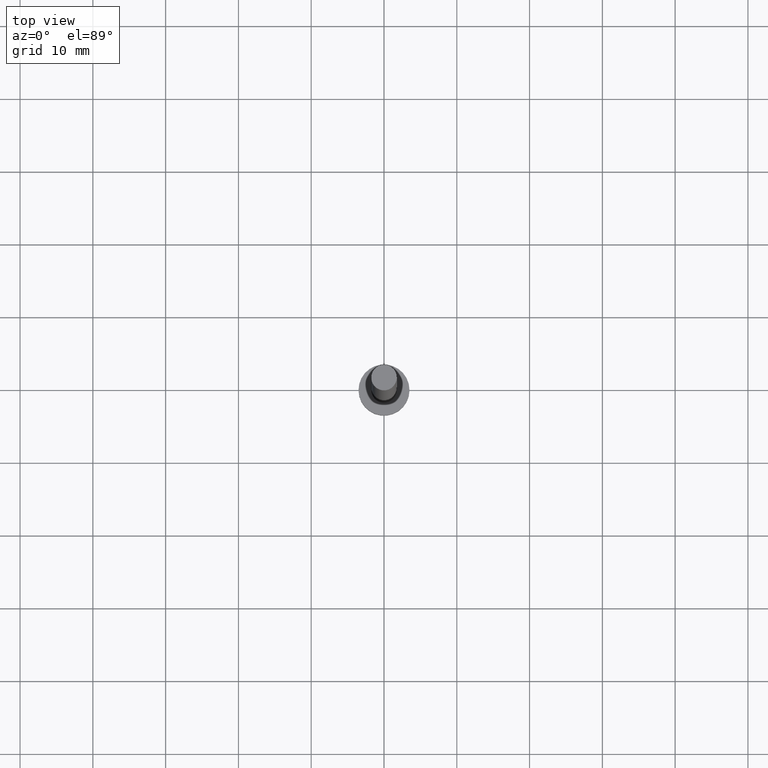
[diagram: clean part render]
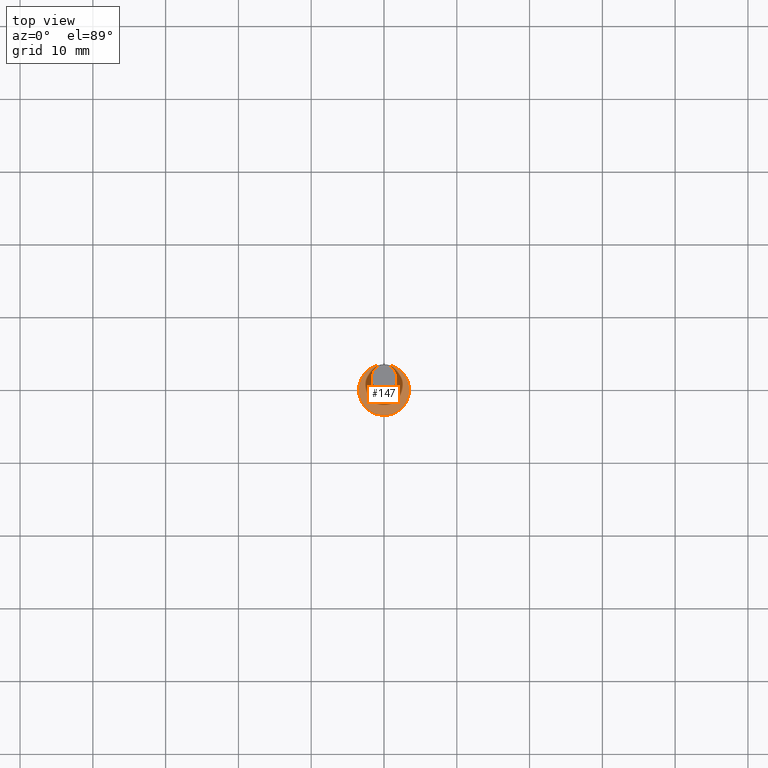
[diagram: same view with one face highlighted and labeled with its STEP entity id]
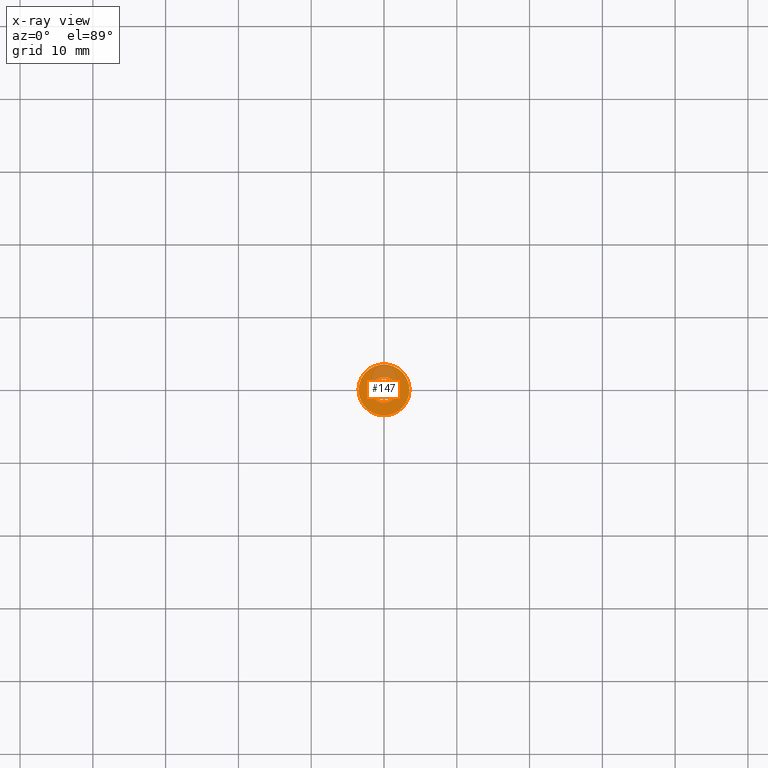
[diagram: x-ray of the same camera — body ghosted, the highlighted face saturated]
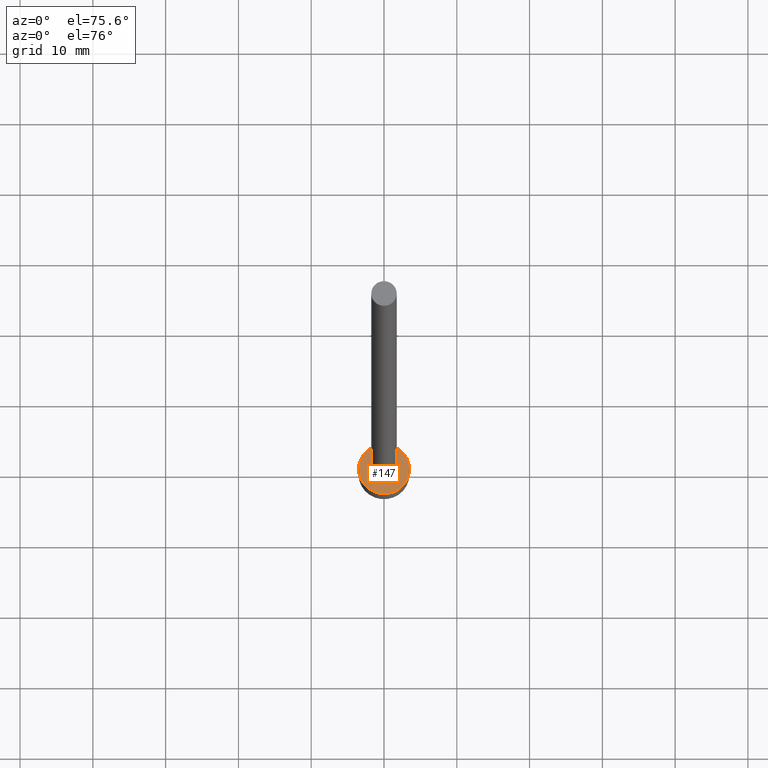
[diagram: same view with one face highlighted and labeled with its STEP entity id]
A machine part, top view. The second image highlights one B-rep face of the part: STEP entity #147.
The next image is the same camera in x-ray: the body ghosted, the highlighted face saturated — about 21% of this face is hidden behind the body in this view.
A second angle (auxiliary view) of the same face is appended — the face is thin or edge-on in the first view.
In plain terms, the highlighted planar face has unit normal (0, 0, 1).
Its self-contained STEP definition (entity closure, byte-faithful):
#17 = CARTESIAN_POINT ( 'NONE',  ( 0.000000000000000000, 0.000000000000000000, 3.000000000000000000 ) ) ;
#28 = AXIS2_PLACEMENT_3D ( 'NONE', #17, #150, #75 ) ;
#29 = DIRECTION ( 'NONE',  ( 1.000000000000000000, 0.000000000000000000, 0.000000000000000000 ) ) ;
#41 = CIRCLE ( 'NONE', #28, 1.750000000000000000 ) ;
#54 = CARTESIAN_POINT ( 'NONE',  ( 0.000000000000000000, 0.000000000000000000, 3.000000000000000000 ) ) ;
#56 = CARTESIAN_POINT ( 'NONE',  ( -1.750000000000000000, 0.000000000000000000, 3.000000000000000000 ) ) ;
#57 = CARTESIAN_POINT ( 'NONE',  ( 0.000000000000000000, 0.000000000000000000, 3.000000000000000000 ) ) ;
#64 = AXIS2_PLACEMENT_3D ( 'NONE', #54, #193, #116 ) ;
#66 = ORIENTED_EDGE ( 'NONE', *, *, #179, .T. ) ;
#72 = EDGE_LOOP ( 'NONE', ( #141, #250 ) ) ;
#75 = DIRECTION ( 'NONE',  ( 1.000000000000000000, 0.000000000000000000, 0.000000000000000000 ) ) ;
#79 = DIRECTION ( 'NONE',  ( 0.000000000000000000, 0.000000000000000000, 1.000000000000000000 ) ) ;
#91 = VERTEX_POINT ( 'NONE', #194 ) ;
#95 = DIRECTION ( 'NONE',  ( 1.000000000000000000, 0.000000000000000000, 0.000000000000000000 ) ) ;
#98 = AXIS2_PLACEMENT_3D ( 'NONE', #130, #137, #252 ) ;
#100 = EDGE_CURVE ( 'NONE', #226, #189, #41, .T. ) ;
#106 = AXIS2_PLACEMENT_3D ( 'NONE', #57, #79, #95 ) ;
#113 = VERTEX_POINT ( 'NONE', #214 ) ;
#116 = DIRECTION ( 'NONE',  ( 1.000000000000000000, 0.000000000000000000, 0.000000000000000000 ) ) ;
#128 = ORIENTED_EDGE ( 'NONE', *, *, #190, .T. ) ;
#130 = CARTESIAN_POINT ( 'NONE',  ( 0.000000000000000000, 0.000000000000000000, 3.000000000000000000 ) ) ;
#134 = PLANE ( 'NONE',  #98 ) ;
#135 = AXIS2_PLACEMENT_3D ( 'NONE', #149, #210, #29 ) ;
#137 = DIRECTION ( 'NONE',  ( 0.000000000000000000, 0.000000000000000000, 1.000000000000000000 ) ) ;
#141 = ORIENTED_EDGE ( 'NONE', *, *, #197, .F. ) ;
#146 = EDGE_LOOP ( 'NONE', ( #128, #66 ) ) ;
#147 = ADVANCED_FACE ( 'NONE', ( #235, #233 ), #134, .T. ) ;
#149 = CARTESIAN_POINT ( 'NONE',  ( 0.000000000000000000, 0.000000000000000000, 3.000000000000000000 ) ) ;
#150 = DIRECTION ( 'NONE',  ( 0.000000000000000000, 0.000000000000000000, 1.000000000000000000 ) ) ;
#159 = CIRCLE ( 'NONE', #106, 1.750000000000000000 ) ;
#179 = EDGE_CURVE ( 'NONE', #91, #113, #239, .T. ) ;
#189 = VERTEX_POINT ( 'NONE', #56 ) ;
#190 = EDGE_CURVE ( 'NONE', #113, #91, #251, .T. ) ;
#193 = DIRECTION ( 'NONE',  ( 0.000000000000000000, 0.000000000000000000, 1.000000000000000000 ) ) ;
#194 = CARTESIAN_POINT ( 'NONE',  ( 3.500000000000000444, 4.286263797015737088E-16, 3.000000000000000000 ) ) ;
#197 = EDGE_CURVE ( 'NONE', #189, #226, #159, .T. ) ;
#210 = DIRECTION ( 'NONE',  ( 0.000000000000000000, 0.000000000000000000, 1.000000000000000000 ) ) ;
#213 = CARTESIAN_POINT ( 'NONE',  ( 1.750000000000000000, 2.143131898507867804E-16, 3.000000000000000000 ) ) ;
#214 = CARTESIAN_POINT ( 'NONE',  ( -3.500000000000000444, 0.000000000000000000, 3.000000000000000000 ) ) ;
#226 = VERTEX_POINT ( 'NONE', #213 ) ;
#233 = FACE_OUTER_BOUND ( 'NONE', #146, .T. ) ;
#235 = FACE_BOUND ( 'NONE', #72, .T. ) ;
#239 = CIRCLE ( 'NONE', #64, 3.500000000000000444 ) ;
#250 = ORIENTED_EDGE ( 'NONE', *, *, #100, .F. ) ;
#251 = CIRCLE ( 'NONE', #135, 3.500000000000000444 ) ;
#252 = DIRECTION ( 'NONE',  ( 1.000000000000000000, 0.000000000000000000, -0.000000000000000000 ) ) ;